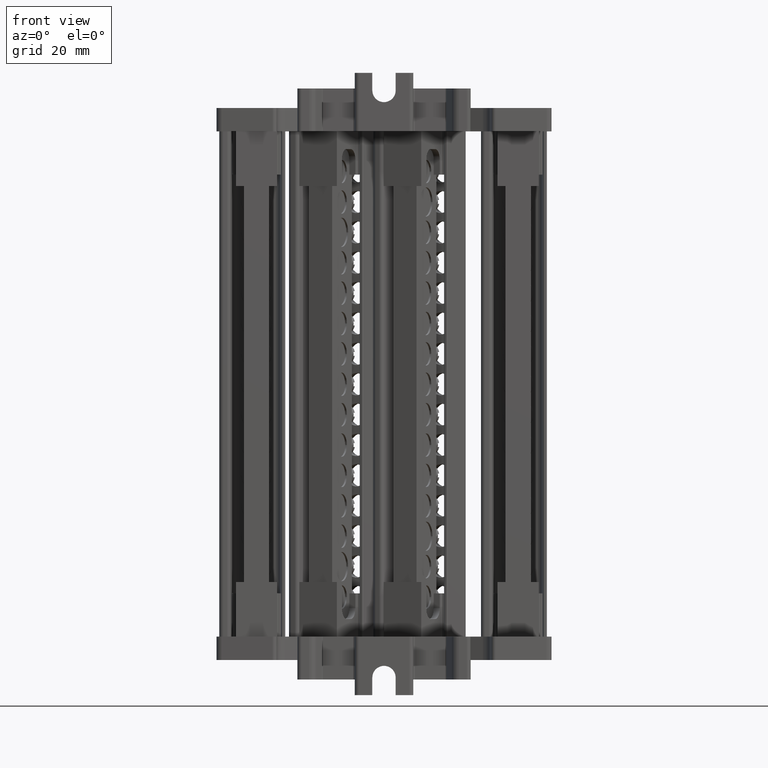
[diagram: clean part render]
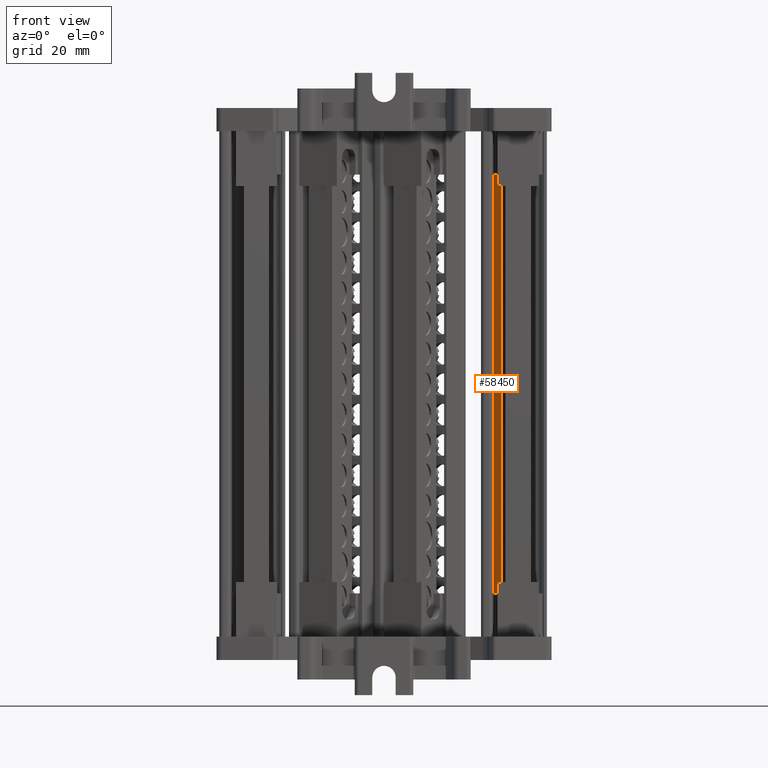
[diagram: same view with one face highlighted and labeled with its STEP entity id]
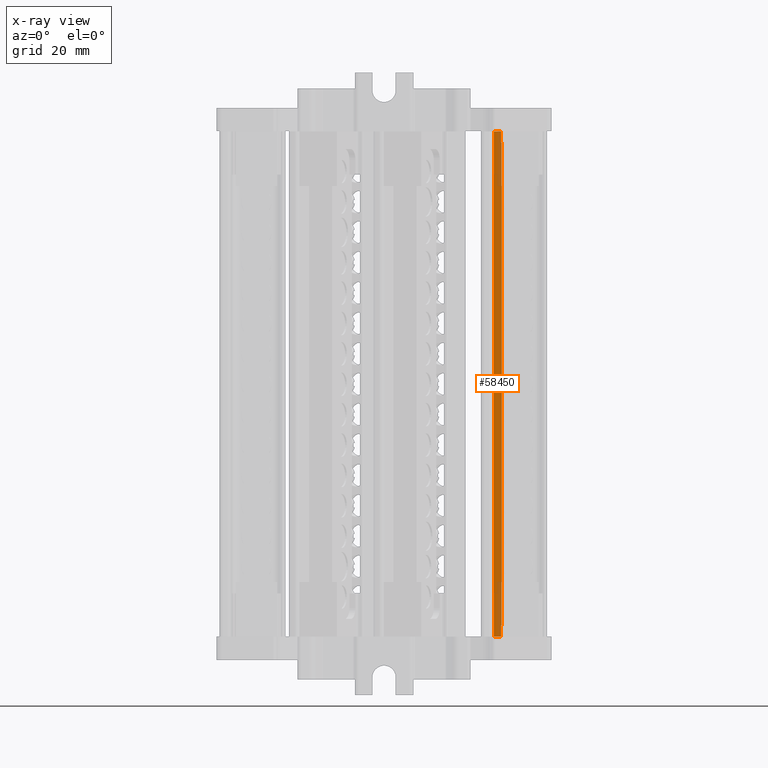
[diagram: x-ray of the same camera — body ghosted, the highlighted face saturated]
A machine part, front view. The second image highlights one B-rep face of the part: STEP entity #58450.
The next image is the same camera in x-ray: the body ghosted, the highlighted face saturated — about 11% of this face is hidden behind the body in this view.
In plain terms, the highlighted cylindrical surface (edge-blend (fillet) strip) has radius 1.9992 mm, axis along (-0, 0, -1).
Its self-contained STEP definition (entity closure, byte-faithful):
#1586 = B_SPLINE_CURVE_WITH_KNOTS ( 'NONE', 3,
 ( #98443, #98445, #98467, #98423 ),
 .UNSPECIFIED., .F., .F.,
 ( 4, 4 ),
 ( 0.0000000000000000000, 1.000000000000000000 ),
 .UNSPECIFIED. ) ;
#1854 = B_SPLINE_CURVE_WITH_KNOTS ( 'NONE', 3,
 ( #98754, #98764, #98771, #98691 ),
 .UNSPECIFIED., .F., .F.,
 ( 4, 4 ),
 ( 0.0000000000000000000, 1.000000000000000000 ),
 .UNSPECIFIED. ) ;
#3443 = CARTESIAN_POINT ( 'NONE',  ( 423.3986242384676200, -72.55675390117696100, 95.86885799992374800 ) ) ;
#3465 = LINE ( 'NONE', #3443, #24627 ) ;
#3467 = DIRECTION ( 'NONE',  ( -6.982962677686110500E-015, 1.604252062634190000E-014, -1.000000000000000000 ) ) ;
#3862 = DIRECTION ( 'NONE',  ( 6.982962677686110500E-015, -1.604252062634190000E-014, 1.000000000000000000 ) ) ;
#3886 = DIRECTION ( 'NONE',  ( 0.0000000000000000000, 1.000000000000000000, 1.735380817210372900E-014 ) ) ;
#3890 = CARTESIAN_POINT ( 'NONE',  ( 423.3986242384667700, -74.55599632540011600, -33.40539199998792000 ) ) ;
#6347 = FACE_OUTER_BOUND ( 'NONE', #69679, .T. ) ;
#6420 = CARTESIAN_POINT ( 'NONE',  ( 423.3986242384676200, -74.55599632540217700, 95.86885799992371900 ) ) ;
#6428 = DIRECTION ( 'NONE',  ( -6.982962677686110500E-015, 1.604252062634190000E-014, -1.000000000000000000 ) ) ;
#6471 = DIRECTION ( 'NONE',  ( 0.0000000000000000000, 1.000000000000000000, 1.388304653768298300E-014 ) ) ;
#6495 = CYLINDRICAL_SURFACE ( 'NONE', #135371, 1.999242424225222700 ) ;
#24627 = VECTOR ( 'NONE', #3467, 1000.000000000000000 ) ;
#24819 = CIRCLE ( 'NONE', #24847, 1.999242424225222700 ) ;
#24847 = AXIS2_PLACEMENT_3D ( 'NONE', #3890, #3862, #3886 ) ;
#25124 = AXIS2_PLACEMENT_3D ( 'NONE', #25380, #25355, #25350 ) ;
#25137 = CIRCLE ( 'NONE', #25124, 1.999242424225222700 ) ;
#25350 = DIRECTION ( 'NONE',  ( 0.0000000000000000000, 1.000000000000000000, 1.388304653768298300E-014 ) ) ;
#25355 = DIRECTION ( 'NONE',  ( -6.982962677686110500E-015, 1.604252062634190000E-014, -1.000000000000000000 ) ) ;
#25380 = CARTESIAN_POINT ( 'NONE',  ( 423.3986242384676200, -74.55599632540217700, 96.29460800001187700 ) ) ;
#31984 = EDGE_CURVE ( 'NONE', #116814, #93892, #74230, .T. ) ;
#33674 = EDGE_CURVE ( 'NONE', #63065, #62882, #25137, .T. ) ;
#34201 = EDGE_CURVE ( 'NONE', #116861, #118170, #3465, .T. ) ;
#34338 = EDGE_CURVE ( 'NONE', #93892, #63231, #24819, .T. ) ;
#45361 = EDGE_CURVE ( 'NONE', #116861, #116896, #1586, .T. ) ;
#45399 = EDGE_CURVE ( 'NONE', #116814, #118170, #1854, .T. ) ;
#48600 = ORIENTED_EDGE ( 'NONE', *, *, #45361, .T. ) ;
#48615 = ORIENTED_EDGE ( 'NONE', *, *, #31984, .F. ) ;
#48623 = ORIENTED_EDGE ( 'NONE', *, *, #45399, .T. ) ;
#48635 = ORIENTED_EDGE ( 'NONE', *, *, #63637, .F. ) ;
#48643 = ORIENTED_EDGE ( 'NONE', *, *, #33674, .F. ) ;
#48646 = ORIENTED_EDGE ( 'NONE', *, *, #34201, .F. ) ;
#48651 = ORIENTED_EDGE ( 'NONE', *, *, #63759, .F. ) ;
#48655 = ORIENTED_EDGE ( 'NONE', *, *, #34338, .F. ) ;
#56339 = CARTESIAN_POINT ( 'NONE',  ( 423.2221696305028300, -72.56455613243667800, -33.40539199998787700 ) ) ;
#58450 = ADVANCED_FACE ( 'NONE', ( #6347 ), #6495, .F. ) ;
#62882 = VERTEX_POINT ( 'NONE', #112574 ) ;
#63065 = VERTEX_POINT ( 'NONE', #115966 ) ;
#63231 = VERTEX_POINT ( 'NONE', #116150 ) ;
#63637 = EDGE_CURVE ( 'NONE', #62882, #116896, #116523, .T. ) ;
#63759 = EDGE_CURVE ( 'NONE', #63231, #63065, #116602, .T. ) ;
#68023 = CARTESIAN_POINT ( 'NONE',  ( 423.2221696305025500, -72.56455613243676300, -30.57321524705724900 ) ) ;
#68076 = CARTESIAN_POINT ( 'NONE',  ( 423.2221696304790200, -72.56455613244089900, 93.46243124707932300 ) ) ;
#68106 = CARTESIAN_POINT ( 'NONE',  ( 423.3986242384676200, -72.55675390117691800, 93.46606948726835600 ) ) ;
#68458 = CARTESIAN_POINT ( 'NONE',  ( 423.3986242384667700, -72.55675390117494300, -30.57685348724524500 ) ) ;
#69679 = EDGE_LOOP ( 'NONE', ( #48623, #48646, #48600, #48635, #48643, #48651, #48655, #48615 ) ) ;
#74230 = LINE ( 'NONE', #74246, #119882 ) ;
#74231 = DIRECTION ( 'NONE',  ( -6.982962677686110500E-015, 1.604252062634190000E-014, -1.000000000000000000 ) ) ;
#74246 = CARTESIAN_POINT ( 'NONE',  ( 423.2221696305034600, -72.56455613243876700, 95.86885799992374800 ) ) ;
#93892 = VERTEX_POINT ( 'NONE', #56339 ) ;
#98423 = CARTESIAN_POINT ( 'NONE',  ( 423.2221696304790200, -72.56455613244089900, 93.46243124707932300 ) ) ;
#98443 = CARTESIAN_POINT ( 'NONE',  ( 423.3986242384676200, -72.55675390117691800, 93.46606948726835600 ) ) ;
#98445 = CARTESIAN_POINT ( 'NONE',  ( 423.3397736437481700, -72.55675390117691800, 93.46606948726835600 ) ) ;
#98467 = CARTESIAN_POINT ( 'NONE',  ( 423.2808786941192200, -72.55935412594999400, 93.46485674053867900 ) ) ;
#98691 = CARTESIAN_POINT ( 'NONE',  ( 423.3986242384667700, -72.55675390117494300, -30.57685348724524500 ) ) ;
#98754 = CARTESIAN_POINT ( 'NONE',  ( 423.2221696305025500, -72.56455613243676300, -30.57321524705724900 ) ) ;
#98764 = CARTESIAN_POINT ( 'NONE',  ( 423.2808786963538500, -72.55935412575067300, -30.57564074051591200 ) ) ;
#98771 = CARTESIAN_POINT ( 'NONE',  ( 423.3397736459833100, -72.55675390117492900, -30.57685348724524100 ) ) ;
#106325 = VECTOR ( 'NONE', #116516, 1000.000000000000000 ) ;
#106444 = VECTOR ( 'NONE', #116604, 1000.000000000000000 ) ;
#112574 = CARTESIAN_POINT ( 'NONE',  ( 423.2221696304791900, -72.56455613244091300, 96.29460800001190500 ) ) ;
#115966 = CARTESIAN_POINT ( 'NONE',  ( 421.3996863085476400, -74.52110473404022200, 96.29460800001189100 ) ) ;
#116150 = CARTESIAN_POINT ( 'NONE',  ( 421.3996863085467300, -74.52110473403918400, -33.40539199998789900 ) ) ;
#116512 = CARTESIAN_POINT ( 'NONE',  ( 423.2221696304790700, -72.56455613244092700, 95.86885799992374800 ) ) ;
#116516 = DIRECTION ( 'NONE',  ( -6.982962677686110500E-015, 1.604252062634190000E-014, -1.000000000000000000 ) ) ;
#116523 = LINE ( 'NONE', #116512, #106325 ) ;
#116602 = LINE ( 'NONE', #116623, #106444 ) ;
#116604 = DIRECTION ( 'NONE',  ( 7.260773709493133200E-015, -1.267372765524814300E-016, 1.000000000000000000 ) ) ;
#116623 = CARTESIAN_POINT ( 'NONE',  ( 421.3996863085476400, -74.52110473403917000, 95.86885799992342100 ) ) ;
#116814 = VERTEX_POINT ( 'NONE', #68023 ) ;
#116861 = VERTEX_POINT ( 'NONE', #68106 ) ;
#116896 = VERTEX_POINT ( 'NONE', #68076 ) ;
#118170 = VERTEX_POINT ( 'NONE', #68458 ) ;
#119882 = VECTOR ( 'NONE', #74231, 1000.000000000000000 ) ;
#135371 = AXIS2_PLACEMENT_3D ( 'NONE', #6420, #6428, #6471 ) ;